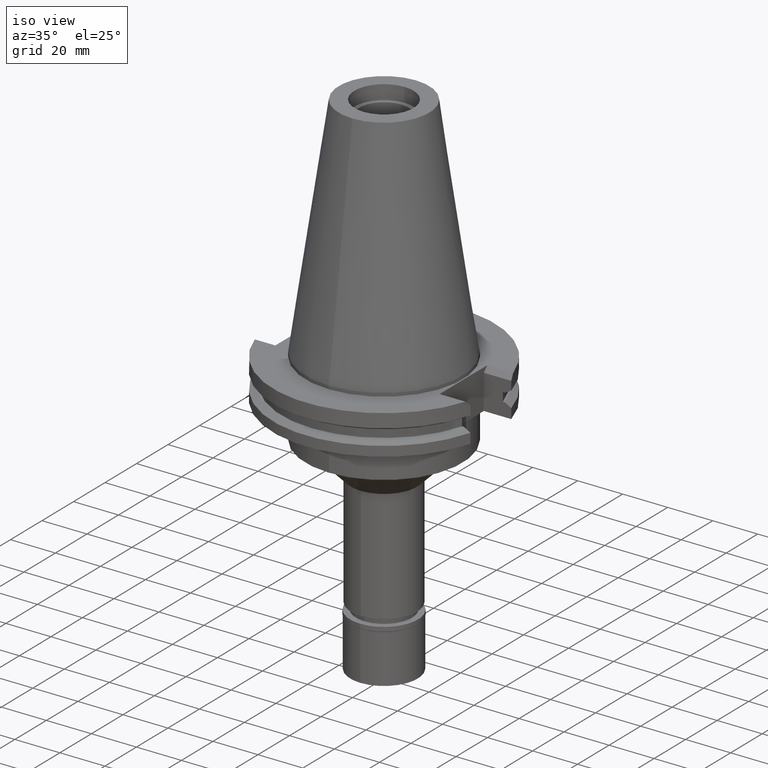
[diagram: clean part render]
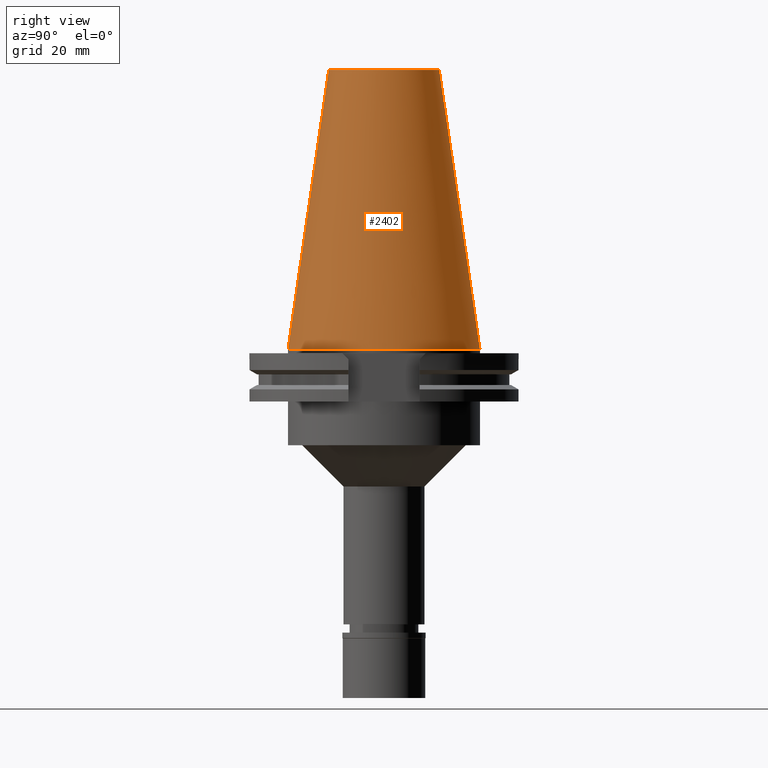
[diagram: tour spotlight — one face highlighted and labeled with its STEP entity id]
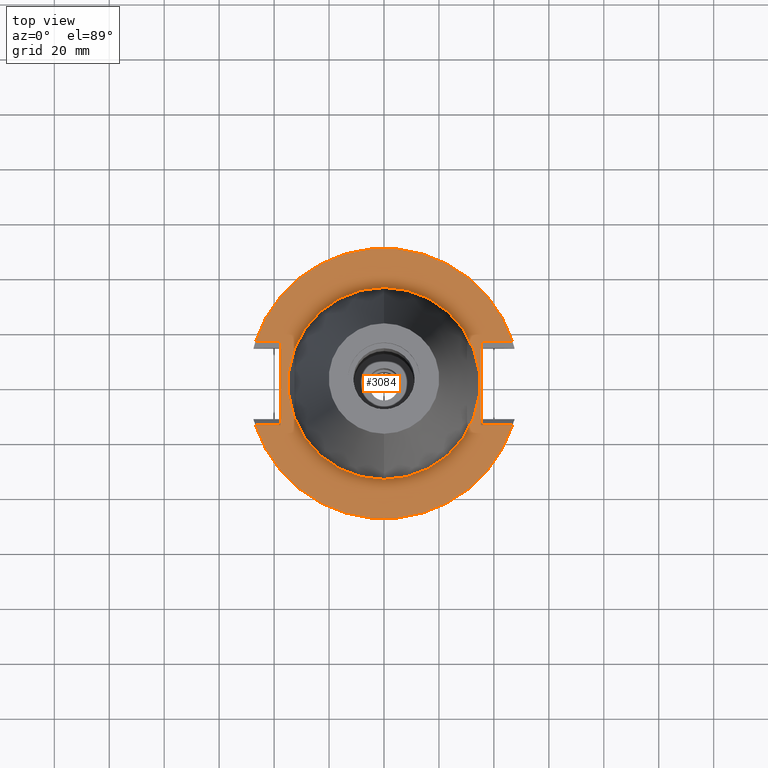
[diagram: tour spotlight — one face highlighted and labeled with its STEP entity id]
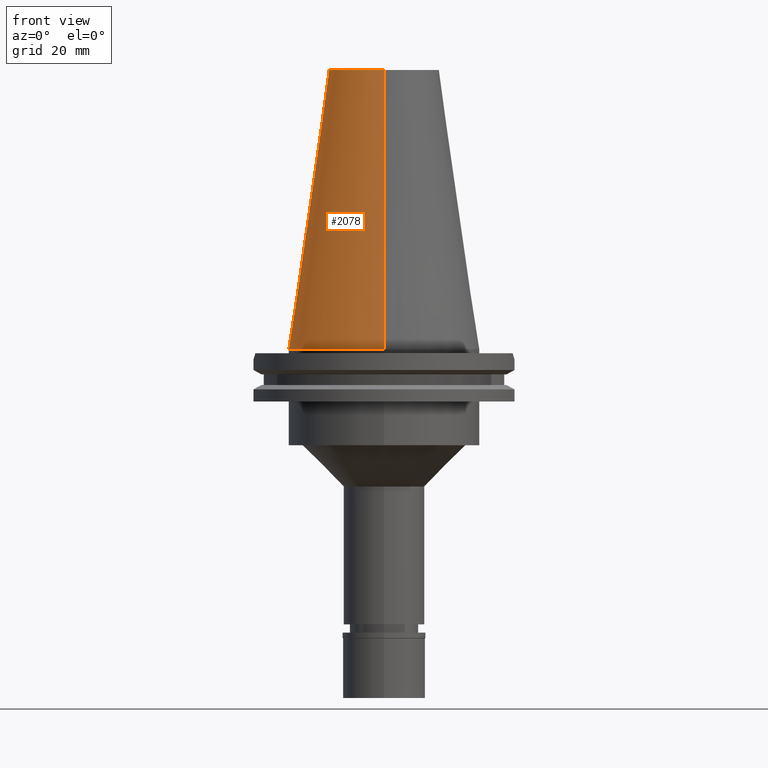
[diagram: tour spotlight — one face highlighted and labeled with its STEP entity id]
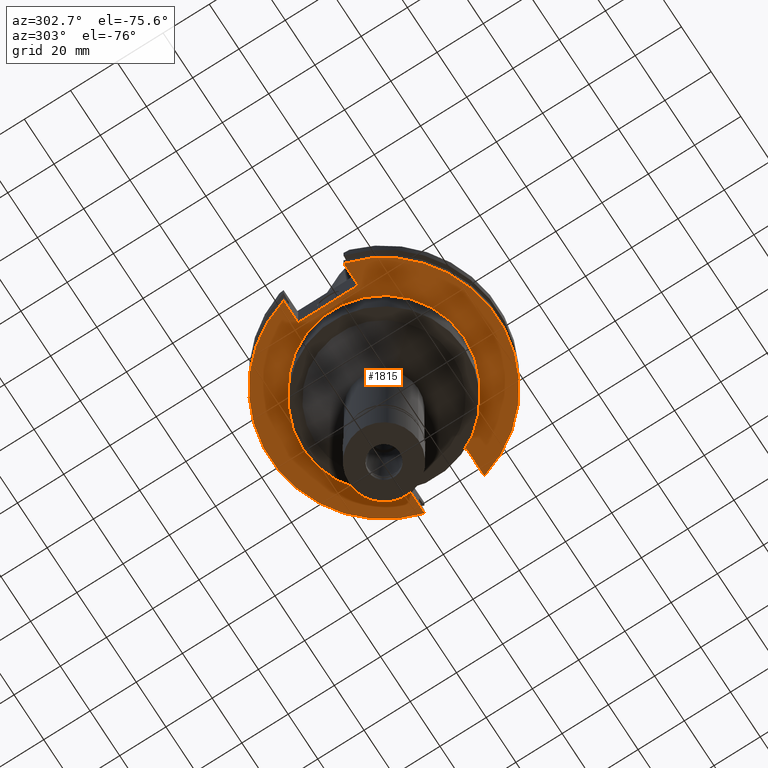
[diagram: tour spotlight — one face highlighted and labeled with its STEP entity id]
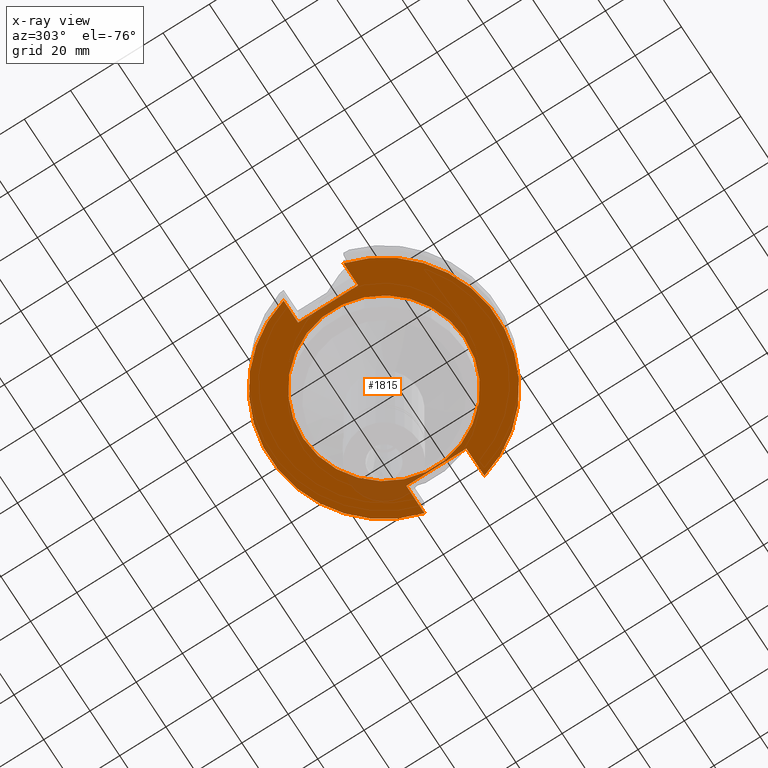
[diagram: x-ray of the same camera — body ghosted, this tour face saturated]
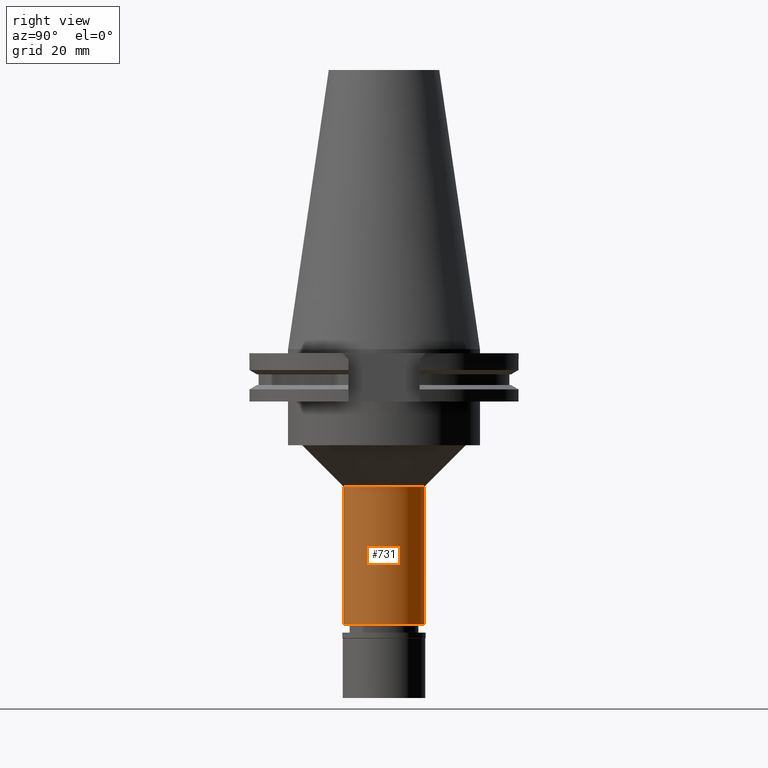
[diagram: tour spotlight — one face highlighted and labeled with its STEP entity id]
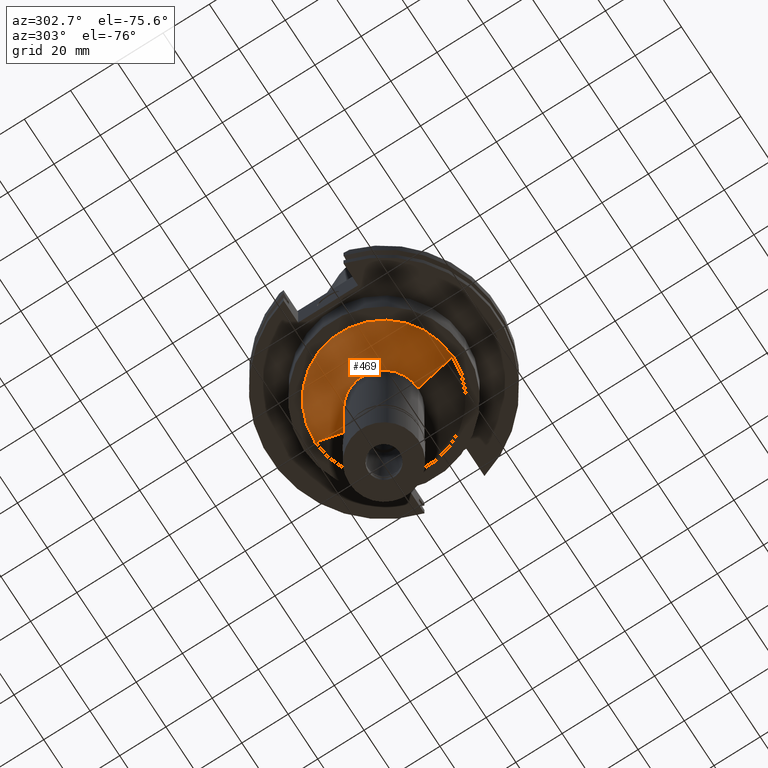
[diagram: tour spotlight — one face highlighted and labeled with its STEP entity id]
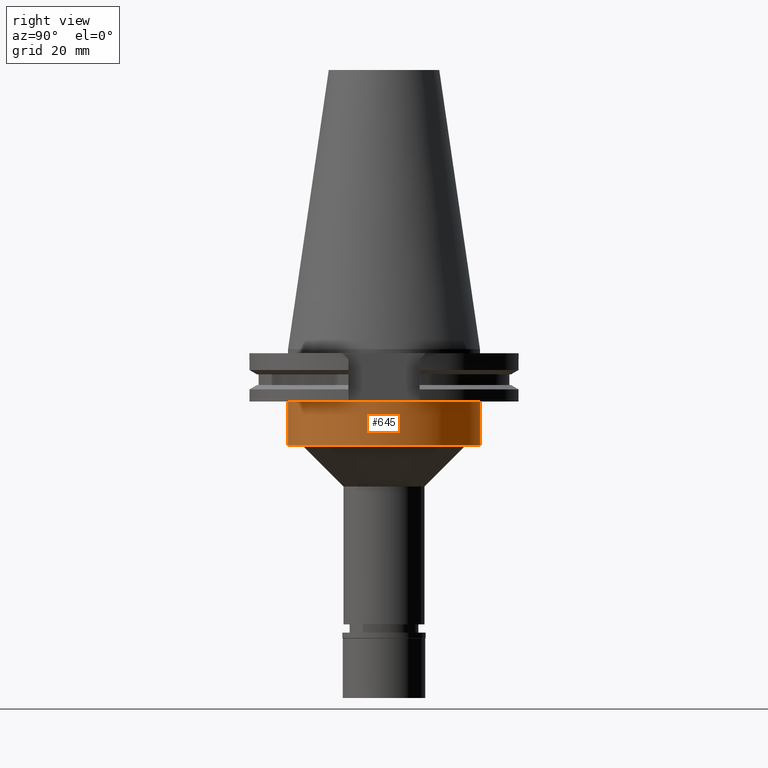
[diagram: tour spotlight — one face highlighted and labeled with its STEP entity id]
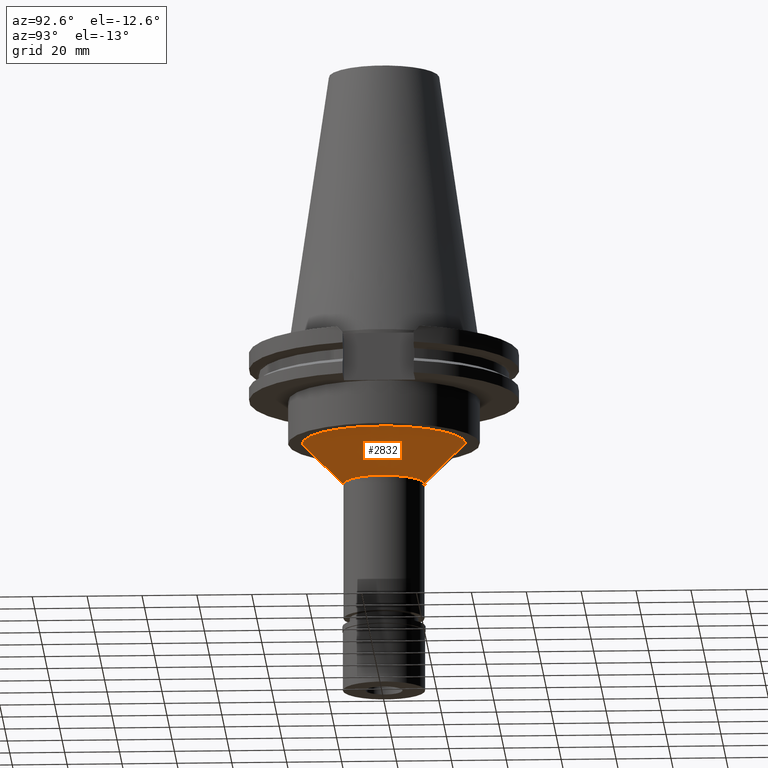
[diagram: tour spotlight — one face highlighted and labeled with its STEP entity id]
A machine part: a face-by-face anatomy tour. The part has 91 B-rep faces; the first image is the clean iso view, then the 8 largest visible faces are spotlighted one at a time (largest first), each with its STEP entity span.

Face 1 — right view, entity #2402. In plain terms, the highlighted conical surface has half-angle 8.297 deg.
Definition (entity closure, byte-faithful):
#215 = VECTOR ( 'NONE', #967, 1000.000000000000114 ) ;
#218 = AXIS2_PLACEMENT_3D ( 'NONE', #1120, #3145, #2659 ) ;
#262 = AXIS2_PLACEMENT_3D ( 'NONE', #2071, #2837, #1879 ) ;
#334 = CIRCLE ( 'NONE', #218, 20.10832422388000040 ) ;
#337 = VERTEX_POINT ( 'NONE', #1143 ) ;
#373 = EDGE_LOOP ( 'NONE', ( #709, #3133, #2662, #656 ) ) ;
#391 = CONICAL_SURFACE ( 'NONE', #1354, 27.51666211194000056, 0.1448125860318199565 ) ;
#436 = VERTEX_POINT ( 'NONE', #2778 ) ;
#474 = LINE ( 'NONE', #2471, #865 ) ;
#526 = EDGE_CURVE ( 'NONE', #337, #436, #474, .T. ) ;
#641 = VERTEX_POINT ( 'NONE', #1664 ) ;
#651 = DIRECTION ( 'NONE',  ( 0.0000000000000000000, 0.0000000000000000000, -1.000000000000000000 ) ) ;
#656 = ORIENTED_EDGE ( 'NONE', *, *, #1913, .F. ) ;
#694 = FACE_OUTER_BOUND ( 'NONE', #373, .T. ) ;
#709 = ORIENTED_EDGE ( 'NONE', *, *, #2143, .T. ) ;
#865 = VECTOR ( 'NONE', #3242, 1000.000000000000114 ) ;
#967 = DIRECTION ( 'NONE',  ( 0.0000000000000000000, 0.1443069799456937474, -0.9895329683941577192 ) ) ;
#1065 = CIRCLE ( 'NONE', #262, 34.92499999999999716 ) ;
#1097 = CARTESIAN_POINT ( 'NONE',  ( 0.0000000000000000000, 20.10832422388000040, 101.5999999999999943 ) ) ;
#1120 = CARTESIAN_POINT ( 'NONE',  ( 0.0000000000000000000, 1.846767373113999857E-14, 101.5999999999999943 ) ) ;
#1143 = CARTESIAN_POINT ( 'NONE',  ( 0.0000000000000000000, -20.10832422388000040, 101.5999999999999943 ) ) ;
#1179 = EDGE_CURVE ( 'NONE', #641, #436, #1065, .T. ) ;
#1354 = AXIS2_PLACEMENT_3D ( 'NONE', #1726, #651, #2742 ) ;
#1505 = LINE ( 'NONE', #2981, #215 ) ;
#1664 = CARTESIAN_POINT ( 'NONE',  ( 0.0000000000000000000, 34.92499999999999716, 4.902744876745000264E-13 ) ) ;
#1726 = CARTESIAN_POINT ( 'NONE',  ( 0.0000000000000000000, 1.846767373113999857E-14, 50.79999999999999716 ) ) ;
#1879 = DIRECTION ( 'NONE',  ( 0.0000000000000000000, 1.000000000000000000, 0.0000000000000000000 ) ) ;
#1913 = EDGE_CURVE ( 'NONE', #3312, #641, #1505, .T. ) ;
#2071 = CARTESIAN_POINT ( 'NONE',  ( 0.0000000000000000000, 1.846767373113999857E-14, 8.242295734816999588E-13 ) ) ;
#2143 = EDGE_CURVE ( 'NONE', #3312, #337, #334, .T. ) ;
#2402 = ADVANCED_FACE ( 'NONE', ( #694 ), #391, .T. ) ;
#2471 = CARTESIAN_POINT ( 'NONE',  ( 0.0000000000000000000, -20.10832422387000307, 101.5999999999999943 ) ) ;
#2659 = DIRECTION ( 'NONE',  ( 0.0000000000000000000, 1.000000000000000000, 0.0000000000000000000 ) ) ;
#2662 = ORIENTED_EDGE ( 'NONE', *, *, #1179, .F. ) ;
#2742 = DIRECTION ( 'NONE',  ( 0.0000000000000000000, -1.000000000000000000, 0.0000000000000000000 ) ) ;
#2778 = CARTESIAN_POINT ( 'NONE',  ( 0.0000000000000000000, -34.92499999999999716, 4.902744876745000264E-13 ) ) ;
#2837 = DIRECTION ( 'NONE',  ( 0.0000000000000000000, 0.0000000000000000000, -1.000000000000000000 ) ) ;
#2981 = CARTESIAN_POINT ( 'NONE',  ( 0.0000000000000000000, 20.10832422387000307, 101.5999999999999943 ) ) ;
#3133 = ORIENTED_EDGE ( 'NONE', *, *, #526, .T. ) ;
#3145 = DIRECTION ( 'NONE',  ( 0.0000000000000000000, 0.0000000000000000000, -1.000000000000000000 ) ) ;
#3242 = DIRECTION ( 'NONE',  ( 0.0000000000000000000, -0.1443069799456937474, -0.9895329683941577192 ) ) ;
#3312 = VERTEX_POINT ( 'NONE', #1097 ) ;

Face 2 — top view, entity #3084. In plain terms, the highlighted planar face has unit normal (0, 0, -1).
Definition (entity closure, byte-faithful):
#32 = CARTESIAN_POINT ( 'NONE',  ( 0.0000000000000000000, -34.92499999999999716, -1.500000000000000000 ) ) ;
#55 = AXIS2_PLACEMENT_3D ( 'NONE', #1154, #242, #2568 ) ;
#103 = VECTOR ( 'NONE', #409, 1000.000000000000000 ) ;
#126 = VERTEX_POINT ( 'NONE', #3250 ) ;
#134 = EDGE_CURVE ( 'NONE', #3226, #2872, #1245, .T. ) ;
#138 = VERTEX_POINT ( 'NONE', #442 ) ;
#176 = CARTESIAN_POINT ( 'NONE',  ( 35.27000000000000313, 15.15499999999999936, -1.500000000000000000 ) ) ;
#217 = CARTESIAN_POINT ( 'NONE',  ( 0.0000000000000000000, 2.602741842227999566E-14, -1.500000000000000000 ) ) ;
#220 = DIRECTION ( 'NONE',  ( 0.0000000000000000000, 0.0000000000000000000, -1.000000000000000000 ) ) ;
#242 = DIRECTION ( 'NONE',  ( 0.0000000000000000000, 0.0000000000000000000, -1.000000000000000000 ) ) ;
#255 = DIRECTION ( 'NONE',  ( 0.0000000000000000000, 1.000000000000000000, 0.0000000000000000000 ) ) ;
#273 = VECTOR ( 'NONE', #1919, 1000.000000000000000 ) ;
#366 = ORIENTED_EDGE ( 'NONE', *, *, #2988, .F. ) ;
#392 = CARTESIAN_POINT ( 'NONE',  ( -37.67999999999999972, 15.15499999999999936, -1.500000000000000000 ) ) ;
#409 = DIRECTION ( 'NONE',  ( -1.000000000000000000, -1.049386061166000038E-14, 0.0000000000000000000 ) ) ;
#431 = ORIENTED_EDGE ( 'NONE', *, *, #2549, .F. ) ;
#442 = CARTESIAN_POINT ( 'NONE',  ( 35.27000000000000313, 15.15499999999999936, -1.500000000000000000 ) ) ;
#521 = EDGE_LOOP ( 'NONE', ( #658, #366, #1609, #431, #561, #3270, #1126, #2629 ) ) ;
#536 = LINE ( 'NONE', #2007, #1472 ) ;
#561 = ORIENTED_EDGE ( 'NONE', *, *, #2385, .T. ) ;
#634 = ORIENTED_EDGE ( 'NONE', *, *, #1298, .F. ) ;
#643 = LINE ( 'NONE', #392, #103 ) ;
#647 = DIRECTION ( 'NONE',  ( 0.0000000000000000000, -1.000000000000000000, 0.0000000000000000000 ) ) ;
#649 = CIRCLE ( 'NONE', #1871, 49.21249999999999858 ) ;
#658 = ORIENTED_EDGE ( 'NONE', *, *, #2365, .T. ) ;
#666 = CARTESIAN_POINT ( 'NONE',  ( -37.67999999999999972, -15.15499999999999936, -1.500000000000000000 ) ) ;
#728 = DIRECTION ( 'NONE',  ( 0.0000000000000000000, 0.0000000000000000000, -1.000000000000000000 ) ) ;
#777 = CARTESIAN_POINT ( 'NONE',  ( 0.0000000000000000000, 1.206277097159999845E-14, -1.500000000000000000 ) ) ;
#1048 = VERTEX_POINT ( 'NONE', #3048 ) ;
#1050 = CARTESIAN_POINT ( 'NONE',  ( 46.82089417396999664, 15.15499999999999936, -1.500000000000000000 ) ) ;
#1083 = AXIS2_PLACEMENT_3D ( 'NONE', #777, #220, #2250 ) ;
#1126 = ORIENTED_EDGE ( 'NONE', *, *, #1889, .F. ) ;
#1154 = CARTESIAN_POINT ( 'NONE',  ( 0.0000000000000000000, 2.602741842227999566E-14, -1.500000000000000000 ) ) ;
#1165 = DIRECTION ( 'NONE',  ( 0.0000000000000000000, 1.000000000000000000, 0.0000000000000000000 ) ) ;
#1189 = VECTOR ( 'NONE', #1207, 1000.000000000000000 ) ;
#1207 = DIRECTION ( 'NONE',  ( 1.000000000000000000, 0.0000000000000000000, 0.0000000000000000000 ) ) ;
#1233 = FACE_BOUND ( 'NONE', #1880, .T. ) ;
#1245 = LINE ( 'NONE', #3266, #1415 ) ;
#1287 = CIRCLE ( 'NONE', #2730, 34.92499999999999716 ) ;
#1289 = CIRCLE ( 'NONE', #2621, 34.92499999999999716 ) ;
#1298 = EDGE_CURVE ( 'NONE', #2024, #2433, #1287, .T. ) ;
#1415 = VECTOR ( 'NONE', #1979, 1000.000000000000000 ) ;
#1432 = EDGE_CURVE ( 'NONE', #2480, #2020, #649, .T. ) ;
#1472 = VECTOR ( 'NONE', #2060, 1000.000000000000000 ) ;
#1504 = EDGE_CURVE ( 'NONE', #2433, #2024, #1289, .T. ) ;
#1530 = CARTESIAN_POINT ( 'NONE',  ( 0.0000000000000000000, 2.602741842227999566E-14, -1.500000000000000000 ) ) ;
#1609 = ORIENTED_EDGE ( 'NONE', *, *, #134, .F. ) ;
#1647 = LINE ( 'NONE', #1694, #2625 ) ;
#1694 = CARTESIAN_POINT ( 'NONE',  ( -37.67999999999999972, -15.15499999999999936, -1.500000000000000000 ) ) ;
#1712 = LINE ( 'NONE', #2226, #273 ) ;
#1791 = DIRECTION ( 'NONE',  ( 0.0000000000000000000, 1.000000000000000000, 0.0000000000000000000 ) ) ;
#1814 = EDGE_CURVE ( 'NONE', #2857, #1048, #1647, .T. ) ;
#1817 = CARTESIAN_POINT ( 'NONE',  ( 35.27000000000000313, -15.15499999999999936, -1.500000000000000000 ) ) ;
#1871 = AXIS2_PLACEMENT_3D ( 'NONE', #217, #728, #1791 ) ;
#1874 = ORIENTED_EDGE ( 'NONE', *, *, #1504, .F. ) ;
#1880 = EDGE_LOOP ( 'NONE', ( #1874, #634 ) ) ;
#1889 = EDGE_CURVE ( 'NONE', #1048, #2480, #643, .T. ) ;
#1919 = DIRECTION ( 'NONE',  ( -1.000000000000000000, 1.049386061166000038E-14, 0.0000000000000000000 ) ) ;
#1966 = CARTESIAN_POINT ( 'NONE',  ( 0.0000000000000000000, 2.602741842227999566E-14, -1.500000000000000000 ) ) ;
#1979 = DIRECTION ( 'NONE',  ( 1.000000000000000000, 0.0000000000000000000, 0.0000000000000000000 ) ) ;
#2001 = PLANE ( 'NONE',  #1083 ) ;
#2007 = CARTESIAN_POINT ( 'NONE',  ( 35.27000000000000313, 15.15499999999999936, -1.500000000000000000 ) ) ;
#2020 = VERTEX_POINT ( 'NONE', #1050 ) ;
#2024 = VERTEX_POINT ( 'NONE', #32 ) ;
#2060 = DIRECTION ( 'NONE',  ( 0.0000000000000000000, -1.000000000000000000, 0.0000000000000000000 ) ) ;
#2226 = CARTESIAN_POINT ( 'NONE',  ( -37.67999999999999972, -15.15499999999999936, -1.500000000000000000 ) ) ;
#2250 = DIRECTION ( 'NONE',  ( 0.0000000000000000000, -1.000000000000000000, 0.0000000000000000000 ) ) ;
#2365 = EDGE_CURVE ( 'NONE', #2857, #126, #1712, .T. ) ;
#2385 = EDGE_CURVE ( 'NONE', #138, #2020, #2724, .T. ) ;
#2433 = VERTEX_POINT ( 'NONE', #2509 ) ;
#2480 = VERTEX_POINT ( 'NONE', #2544 ) ;
#2509 = CARTESIAN_POINT ( 'NONE',  ( 0.0000000000000000000, 34.92499999999999716, -1.500000000000000000 ) ) ;
#2522 = DIRECTION ( 'NONE',  ( 0.0000000000000000000, 0.0000000000000000000, 1.000000000000000000 ) ) ;
#2544 = CARTESIAN_POINT ( 'NONE',  ( -46.82089417396999664, 15.15499999999999936, -1.500000000000000000 ) ) ;
#2549 = EDGE_CURVE ( 'NONE', #138, #3226, #536, .T. ) ;
#2568 = DIRECTION ( 'NONE',  ( 0.0000000000000000000, -1.000000000000000000, 0.0000000000000000000 ) ) ;
#2621 = AXIS2_PLACEMENT_3D ( 'NONE', #1530, #2522, #255 ) ;
#2625 = VECTOR ( 'NONE', #1165, 1000.000000000000000 ) ;
#2629 = ORIENTED_EDGE ( 'NONE', *, *, #1814, .F. ) ;
#2724 = LINE ( 'NONE', #176, #1189 ) ;
#2730 = AXIS2_PLACEMENT_3D ( 'NONE', #1966, #2934, #647 ) ;
#2857 = VERTEX_POINT ( 'NONE', #666 ) ;
#2872 = VERTEX_POINT ( 'NONE', #3197 ) ;
#2934 = DIRECTION ( 'NONE',  ( 0.0000000000000000000, 0.0000000000000000000, 1.000000000000000000 ) ) ;
#2988 = EDGE_CURVE ( 'NONE', #2872, #126, #3011, .T. ) ;
#3011 = CIRCLE ( 'NONE', #55, 49.21249999999999858 ) ;
#3048 = CARTESIAN_POINT ( 'NONE',  ( -37.67999999999999972, 15.15499999999999936, -1.500000000000000000 ) ) ;
#3075 = FACE_OUTER_BOUND ( 'NONE', #521, .T. ) ;
#3084 = ADVANCED_FACE ( 'NONE', ( #3075, #1233 ), #2001, .F. ) ;
#3197 = CARTESIAN_POINT ( 'NONE',  ( 46.82089417396999664, -15.15499999999999936, -1.500000000000000000 ) ) ;
#3226 = VERTEX_POINT ( 'NONE', #1817 ) ;
#3250 = CARTESIAN_POINT ( 'NONE',  ( -46.82089417396999664, -15.15499999999999936, -1.500000000000000000 ) ) ;
#3266 = CARTESIAN_POINT ( 'NONE',  ( 35.27000000000000313, -15.15499999999999936, -1.500000000000000000 ) ) ;
#3270 = ORIENTED_EDGE ( 'NONE', *, *, #1432, .F. ) ;

Face 3 — front view, entity #2078. In plain terms, the highlighted conical surface has half-angle 8.297 deg.
Definition (entity closure, byte-faithful):
#17 = CARTESIAN_POINT ( 'NONE',  ( 0.0000000000000000000, 1.846767373113999857E-14, 50.79999999999999716 ) ) ;
#215 = VECTOR ( 'NONE', #967, 1000.000000000000114 ) ;
#337 = VERTEX_POINT ( 'NONE', #1143 ) ;
#436 = VERTEX_POINT ( 'NONE', #2778 ) ;
#468 = FACE_OUTER_BOUND ( 'NONE', #800, .T. ) ;
#474 = LINE ( 'NONE', #2471, #865 ) ;
#499 = DIRECTION ( 'NONE',  ( 0.0000000000000000000, -1.000000000000000000, 0.0000000000000000000 ) ) ;
#526 = EDGE_CURVE ( 'NONE', #337, #436, #474, .T. ) ;
#641 = VERTEX_POINT ( 'NONE', #1664 ) ;
#690 = ORIENTED_EDGE ( 'NONE', *, *, #1913, .T. ) ;
#698 = CIRCLE ( 'NONE', #1569, 34.92499999999999716 ) ;
#800 = EDGE_LOOP ( 'NONE', ( #2399, #2132, #1019, #690 ) ) ;
#865 = VECTOR ( 'NONE', #3242, 1000.000000000000114 ) ;
#967 = DIRECTION ( 'NONE',  ( 0.0000000000000000000, 0.1443069799456937474, -0.9895329683941577192 ) ) ;
#1019 = ORIENTED_EDGE ( 'NONE', *, *, #2795, .T. ) ;
#1097 = CARTESIAN_POINT ( 'NONE',  ( 0.0000000000000000000, 20.10832422388000040, 101.5999999999999943 ) ) ;
#1141 = AXIS2_PLACEMENT_3D ( 'NONE', #17, #2015, #499 ) ;
#1143 = CARTESIAN_POINT ( 'NONE',  ( 0.0000000000000000000, -20.10832422388000040, 101.5999999999999943 ) ) ;
#1247 = AXIS2_PLACEMENT_3D ( 'NONE', #2885, #2639, #2158 ) ;
#1409 = CONICAL_SURFACE ( 'NONE', #1141, 27.51666211194000056, 0.1448125860318199565 ) ;
#1505 = LINE ( 'NONE', #2981, #215 ) ;
#1569 = AXIS2_PLACEMENT_3D ( 'NONE', #2447, #3234, #1961 ) ;
#1664 = CARTESIAN_POINT ( 'NONE',  ( 0.0000000000000000000, 34.92499999999999716, 4.902744876745000264E-13 ) ) ;
#1752 = EDGE_CURVE ( 'NONE', #436, #641, #698, .T. ) ;
#1913 = EDGE_CURVE ( 'NONE', #3312, #641, #1505, .T. ) ;
#1961 = DIRECTION ( 'NONE',  ( 0.0000000000000000000, -1.000000000000000000, 0.0000000000000000000 ) ) ;
#2015 = DIRECTION ( 'NONE',  ( 0.0000000000000000000, 0.0000000000000000000, -1.000000000000000000 ) ) ;
#2078 = ADVANCED_FACE ( 'NONE', ( #468 ), #1409, .T. ) ;
#2132 = ORIENTED_EDGE ( 'NONE', *, *, #526, .F. ) ;
#2158 = DIRECTION ( 'NONE',  ( 0.0000000000000000000, -1.000000000000000000, 0.0000000000000000000 ) ) ;
#2399 = ORIENTED_EDGE ( 'NONE', *, *, #1752, .F. ) ;
#2447 = CARTESIAN_POINT ( 'NONE',  ( 0.0000000000000000000, 1.846767373113999857E-14, 8.242295734816999588E-13 ) ) ;
#2471 = CARTESIAN_POINT ( 'NONE',  ( 0.0000000000000000000, -20.10832422387000307, 101.5999999999999943 ) ) ;
#2576 = CIRCLE ( 'NONE', #1247, 20.10832422388000040 ) ;
#2639 = DIRECTION ( 'NONE',  ( 0.0000000000000000000, 0.0000000000000000000, -1.000000000000000000 ) ) ;
#2778 = CARTESIAN_POINT ( 'NONE',  ( 0.0000000000000000000, -34.92499999999999716, 4.902744876745000264E-13 ) ) ;
#2795 = EDGE_CURVE ( 'NONE', #337, #3312, #2576, .T. ) ;
#2885 = CARTESIAN_POINT ( 'NONE',  ( 0.0000000000000000000, 1.846767373113999857E-14, 101.5999999999999943 ) ) ;
#2981 = CARTESIAN_POINT ( 'NONE',  ( 0.0000000000000000000, 20.10832422387000307, 101.5999999999999943 ) ) ;
#3234 = DIRECTION ( 'NONE',  ( 0.0000000000000000000, 0.0000000000000000000, -1.000000000000000000 ) ) ;
#3242 = DIRECTION ( 'NONE',  ( 0.0000000000000000000, -0.1443069799456937474, -0.9895329683941577192 ) ) ;
#3312 = VERTEX_POINT ( 'NONE', #1097 ) ;

Face 4 — auxiliary view, entity #1815. An x-ray twin of the same camera follows (body ghosted, this face saturated) — the face is partly hidden behind the body. In plain terms, the highlighted planar face has unit normal (0, 0, -1).
Definition (entity closure, byte-faithful):
#23 = CARTESIAN_POINT ( 'NONE',  ( -37.67999999999999972, 12.95500000000000007, -19.05000000000000071 ) ) ;
#36 = DIRECTION ( 'NONE',  ( 0.0000000000000000000, 0.0000000000000000000, 1.000000000000000000 ) ) ;
#44 = DIRECTION ( 'NONE',  ( 0.0000000000000000000, -1.000000000000000000, 0.0000000000000000000 ) ) ;
#52 = EDGE_CURVE ( 'NONE', #2323, #952, #2735, .T. ) ;
#66 = DIRECTION ( 'NONE',  ( 0.0000000000000000000, 1.000000000000000000, 0.0000000000000000000 ) ) ;
#77 = LINE ( 'NONE', #2868, #1416 ) ;
#81 = ORIENTED_EDGE ( 'NONE', *, *, #2650, .F. ) ;
#91 = ORIENTED_EDGE ( 'NONE', *, *, #928, .F. ) ;
#149 = FACE_OUTER_BOUND ( 'NONE', #1222, .T. ) ;
#209 = VECTOR ( 'NONE', #1858, 1000.000000000000000 ) ;
#332 = CARTESIAN_POINT ( 'NONE',  ( 47.47671146204000081, -12.95500000000000007, -19.05000000000000071 ) ) ;
#359 = PLANE ( 'NONE',  #1683 ) ;
#371 = EDGE_CURVE ( 'NONE', #2327, #2190, #1028, .T. ) ;
#510 = CIRCLE ( 'NONE', #2318, 34.92499999999999716 ) ;
#582 = CARTESIAN_POINT ( 'NONE',  ( 0.0000000000000000000, -34.92499999999999716, -19.05000000000000071 ) ) ;
#594 = LINE ( 'NONE', #2924, #1581 ) ;
#599 = VECTOR ( 'NONE', #1278, 1000.000000000000000 ) ;
#603 = EDGE_CURVE ( 'NONE', #952, #1078, #1305, .T. ) ;
#672 = CARTESIAN_POINT ( 'NONE',  ( -47.47671146204000081, -12.95500000000000007, -19.05000000000000071 ) ) ;
#730 = CARTESIAN_POINT ( 'NONE',  ( 0.0000000000000000000, 2.602741842227999566E-14, -19.05000000000000071 ) ) ;
#790 = CARTESIAN_POINT ( 'NONE',  ( 0.0000000000000000000, 34.92499999999999716, -19.05000000000000071 ) ) ;
#835 = LINE ( 'NONE', #2567, #209 ) ;
#855 = LINE ( 'NONE', #1079, #2514 ) ;
#881 = ORIENTED_EDGE ( 'NONE', *, *, #371, .F. ) ;
#928 = EDGE_CURVE ( 'NONE', #2681, #3251, #1484, .T. ) ;
#952 = VERTEX_POINT ( 'NONE', #2041 ) ;
#1028 = CIRCLE ( 'NONE', #1086, 49.21249999999999858 ) ;
#1058 = CARTESIAN_POINT ( 'NONE',  ( -47.47671146204000081, 12.95500000000000007, -19.05000000000000071 ) ) ;
#1078 = VERTEX_POINT ( 'NONE', #1058 ) ;
#1079 = CARTESIAN_POINT ( 'NONE',  ( 35.27000000000000313, 12.95500000000000007, -19.05000000000000071 ) ) ;
#1086 = AXIS2_PLACEMENT_3D ( 'NONE', #2594, #36, #3147 ) ;
#1137 = EDGE_CURVE ( 'NONE', #2323, #2600, #855, .T. ) ;
#1222 = EDGE_LOOP ( 'NONE', ( #1812, #1562, #2989, #1531, #1627, #881, #2863, #3323 ) ) ;
#1278 = DIRECTION ( 'NONE',  ( 1.000000000000000000, 1.455229645530999953E-14, 0.0000000000000000000 ) ) ;
#1305 = CIRCLE ( 'NONE', #1419, 49.21249999999999858 ) ;
#1365 = AXIS2_PLACEMENT_3D ( 'NONE', #1641, #2145, #3318 ) ;
#1399 = DIRECTION ( 'NONE',  ( 0.0000000000000000000, 0.0000000000000000000, -1.000000000000000000 ) ) ;
#1416 = VECTOR ( 'NONE', #1859, 1000.000000000000000 ) ;
#1419 = AXIS2_PLACEMENT_3D ( 'NONE', #730, #1953, #2973 ) ;
#1484 = CIRCLE ( 'NONE', #1365, 34.92499999999999716 ) ;
#1531 = ORIENTED_EDGE ( 'NONE', *, *, #1137, .T. ) ;
#1562 = ORIENTED_EDGE ( 'NONE', *, *, #603, .F. ) ;
#1581 = VECTOR ( 'NONE', #2346, 1000.000000000000000 ) ;
#1627 = ORIENTED_EDGE ( 'NONE', *, *, #2199, .T. ) ;
#1637 = DIRECTION ( 'NONE',  ( 1.000000000000000000, -1.411572756165000194E-14, 0.0000000000000000000 ) ) ;
#1641 = CARTESIAN_POINT ( 'NONE',  ( 0.0000000000000000000, 2.602741842227999566E-14, -19.05000000000000071 ) ) ;
#1682 = EDGE_CURVE ( 'NONE', #1703, #2327, #835, .T. ) ;
#1683 = AXIS2_PLACEMENT_3D ( 'NONE', #1704, #1399, #2919 ) ;
#1703 = VERTEX_POINT ( 'NONE', #2068 ) ;
#1704 = CARTESIAN_POINT ( 'NONE',  ( 0.0000000000000000000, 0.0000000000000000000, -19.05000000000000071 ) ) ;
#1760 = EDGE_LOOP ( 'NONE', ( #81, #91 ) ) ;
#1812 = ORIENTED_EDGE ( 'NONE', *, *, #3282, .T. ) ;
#1815 = ADVANCED_FACE ( 'NONE', ( #149, #2651 ), #359, .T. ) ;
#1858 = DIRECTION ( 'NONE',  ( -1.000000000000000000, -1.795085297572000011E-14, 0.0000000000000000000 ) ) ;
#1859 = DIRECTION ( 'NONE',  ( -1.000000000000000000, 1.813217472294999948E-14, 0.0000000000000000000 ) ) ;
#1887 = CARTESIAN_POINT ( 'NONE',  ( 35.27000000000000313, -12.95500000000000007, -19.05000000000000071 ) ) ;
#1901 = DIRECTION ( 'NONE',  ( 0.0000000000000000000, 0.0000000000000000000, -1.000000000000000000 ) ) ;
#1953 = DIRECTION ( 'NONE',  ( 0.0000000000000000000, 0.0000000000000000000, 1.000000000000000000 ) ) ;
#2041 = CARTESIAN_POINT ( 'NONE',  ( 47.47671146204000081, 12.95500000000000007, -19.05000000000000071 ) ) ;
#2068 = CARTESIAN_POINT ( 'NONE',  ( -37.67999999999999972, -12.95500000000000007, -19.05000000000000071 ) ) ;
#2097 = VECTOR ( 'NONE', #1637, 1000.000000000000000 ) ;
#2145 = DIRECTION ( 'NONE',  ( 0.0000000000000000000, 0.0000000000000000000, -1.000000000000000000 ) ) ;
#2190 = VERTEX_POINT ( 'NONE', #332 ) ;
#2199 = EDGE_CURVE ( 'NONE', #2600, #2190, #3112, .T. ) ;
#2257 = CARTESIAN_POINT ( 'NONE',  ( 35.27000000000000313, -12.95500000000000007, -19.05000000000000071 ) ) ;
#2286 = CARTESIAN_POINT ( 'NONE',  ( 35.27000000000000313, 12.95500000000000007, -19.05000000000000071 ) ) ;
#2318 = AXIS2_PLACEMENT_3D ( 'NONE', #2360, #1901, #66 ) ;
#2323 = VERTEX_POINT ( 'NONE', #2715 ) ;
#2327 = VERTEX_POINT ( 'NONE', #672 ) ;
#2346 = DIRECTION ( 'NONE',  ( 0.0000000000000000000, 1.000000000000000000, 0.0000000000000000000 ) ) ;
#2360 = CARTESIAN_POINT ( 'NONE',  ( 0.0000000000000000000, 2.602741842227999566E-14, -19.05000000000000071 ) ) ;
#2514 = VECTOR ( 'NONE', #44, 1000.000000000000000 ) ;
#2567 = CARTESIAN_POINT ( 'NONE',  ( -37.67999999999999972, -12.95500000000000007, -19.05000000000000071 ) ) ;
#2594 = CARTESIAN_POINT ( 'NONE',  ( 0.0000000000000000000, 2.602741842227999566E-14, -19.05000000000000071 ) ) ;
#2600 = VERTEX_POINT ( 'NONE', #2257 ) ;
#2650 = EDGE_CURVE ( 'NONE', #3251, #2681, #510, .T. ) ;
#2651 = FACE_BOUND ( 'NONE', #1760, .T. ) ;
#2680 = EDGE_CURVE ( 'NONE', #1703, #3180, #594, .T. ) ;
#2681 = VERTEX_POINT ( 'NONE', #582 ) ;
#2715 = CARTESIAN_POINT ( 'NONE',  ( 35.27000000000000313, 12.95500000000000007, -19.05000000000000071 ) ) ;
#2735 = LINE ( 'NONE', #2286, #599 ) ;
#2863 = ORIENTED_EDGE ( 'NONE', *, *, #1682, .F. ) ;
#2868 = CARTESIAN_POINT ( 'NONE',  ( -37.67999999999999972, 12.95500000000000007, -19.05000000000000071 ) ) ;
#2919 = DIRECTION ( 'NONE',  ( 0.0000000000000000000, -1.000000000000000000, 0.0000000000000000000 ) ) ;
#2924 = CARTESIAN_POINT ( 'NONE',  ( -37.67999999999999972, -12.95500000000000007, -19.05000000000000071 ) ) ;
#2973 = DIRECTION ( 'NONE',  ( 0.0000000000000000000, 1.000000000000000000, 0.0000000000000000000 ) ) ;
#2989 = ORIENTED_EDGE ( 'NONE', *, *, #52, .F. ) ;
#3112 = LINE ( 'NONE', #1887, #2097 ) ;
#3147 = DIRECTION ( 'NONE',  ( 0.0000000000000000000, -1.000000000000000000, 0.0000000000000000000 ) ) ;
#3180 = VERTEX_POINT ( 'NONE', #23 ) ;
#3251 = VERTEX_POINT ( 'NONE', #790 ) ;
#3282 = EDGE_CURVE ( 'NONE', #3180, #1078, #77, .T. ) ;
#3318 = DIRECTION ( 'NONE',  ( 0.0000000000000000000, -1.000000000000000000, 0.0000000000000000000 ) ) ;
#3323 = ORIENTED_EDGE ( 'NONE', *, *, #2680, .T. ) ;

Face 5 — right view, entity #731. In plain terms, the highlighted cylindrical surface (partial cylindrical patch) has radius 14.75 mm, axis along (0, 0, -1).
Definition (entity closure, byte-faithful):
#43 = CARTESIAN_POINT ( 'NONE',  ( 0.0000000000000000000, 2.602741842227999566E-14, 112.5300000000000011 ) ) ;
#63 = DIRECTION ( 'NONE',  ( 0.0000000000000000000, 0.0000000000000000000, -1.000000000000000000 ) ) ;
#155 = CARTESIAN_POINT ( 'NONE',  ( 0.0000000000000000000, 14.75000000000000000, -100.2000000000000028 ) ) ;
#295 = LINE ( 'NONE', #557, #1310 ) ;
#304 = CARTESIAN_POINT ( 'NONE',  ( 0.0000000000000000000, -14.75000000000000000, -100.2000000000000028 ) ) ;
#477 = ORIENTED_EDGE ( 'NONE', *, *, #2914, .T. ) ;
#525 = DIRECTION ( 'NONE',  ( 0.0000000000000000000, 0.0000000000000000000, 1.000000000000000000 ) ) ;
#552 = VERTEX_POINT ( 'NONE', #155 ) ;
#557 = CARTESIAN_POINT ( 'NONE',  ( 0.0000000000000000000, 14.75000000000000000, -50.00000000000000000 ) ) ;
#679 = LINE ( 'NONE', #939, #868 ) ;
#731 = ADVANCED_FACE ( 'NONE', ( #2173 ), #1332, .T. ) ;
#745 = EDGE_CURVE ( 'NONE', #3101, #847, #1091, .T. ) ;
#847 = VERTEX_POINT ( 'NONE', #1108 ) ;
#868 = VECTOR ( 'NONE', #1201, 1000.000000000000000 ) ;
#939 = CARTESIAN_POINT ( 'NONE',  ( 0.0000000000000000000, -14.75000000000000000, -50.00000000000000000 ) ) ;
#990 = EDGE_CURVE ( 'NONE', #3101, #552, #295, .T. ) ;
#1045 = DIRECTION ( 'NONE',  ( 0.0000000000000000000, -1.000000000000000000, 0.0000000000000000000 ) ) ;
#1076 = DIRECTION ( 'NONE',  ( 0.0000000000000000000, 0.0000000000000000000, -1.000000000000000000 ) ) ;
#1091 = CIRCLE ( 'NONE', #2381, 14.75000000000000000 ) ;
#1108 = CARTESIAN_POINT ( 'NONE',  ( 0.0000000000000000000, -14.75000000000000000, -50.00000000000000000 ) ) ;
#1201 = DIRECTION ( 'NONE',  ( 0.0000000000000000000, 0.0000000000000000000, -1.000000000000000000 ) ) ;
#1310 = VECTOR ( 'NONE', #1361, 1000.000000000000000 ) ;
#1332 = CYLINDRICAL_SURFACE ( 'NONE', #2585, 14.75000000000000000 ) ;
#1361 = DIRECTION ( 'NONE',  ( 0.0000000000000000000, 0.0000000000000000000, -1.000000000000000000 ) ) ;
#1364 = ORIENTED_EDGE ( 'NONE', *, *, #2488, .T. ) ;
#1425 = DIRECTION ( 'NONE',  ( 0.0000000000000000000, 1.000000000000000000, 0.0000000000000000000 ) ) ;
#1564 = CARTESIAN_POINT ( 'NONE',  ( 0.0000000000000000000, 14.75000000000000000, -50.00000000000000000 ) ) ;
#1977 = ORIENTED_EDGE ( 'NONE', *, *, #990, .F. ) ;
#2072 = CARTESIAN_POINT ( 'NONE',  ( 0.0000000000000000000, 2.602741842227999566E-14, -100.2000000000000028 ) ) ;
#2173 = FACE_OUTER_BOUND ( 'NONE', #3215, .T. ) ;
#2276 = ORIENTED_EDGE ( 'NONE', *, *, #745, .T. ) ;
#2373 = CARTESIAN_POINT ( 'NONE',  ( 0.0000000000000000000, 0.0000000000000000000, -50.00000000000000000 ) ) ;
#2381 = AXIS2_PLACEMENT_3D ( 'NONE', #2373, #63, #1425 ) ;
#2488 = EDGE_CURVE ( 'NONE', #3290, #552, #2632, .T. ) ;
#2585 = AXIS2_PLACEMENT_3D ( 'NONE', #43, #1076, #3126 ) ;
#2632 = CIRCLE ( 'NONE', #3169, 14.75000000000000000 ) ;
#2914 = EDGE_CURVE ( 'NONE', #847, #3290, #679, .T. ) ;
#3101 = VERTEX_POINT ( 'NONE', #1564 ) ;
#3126 = DIRECTION ( 'NONE',  ( 0.0000000000000000000, -1.000000000000000000, 0.0000000000000000000 ) ) ;
#3169 = AXIS2_PLACEMENT_3D ( 'NONE', #2072, #525, #1045 ) ;
#3215 = EDGE_LOOP ( 'NONE', ( #2276, #477, #1364, #1977 ) ) ;
#3290 = VERTEX_POINT ( 'NONE', #304 ) ;

Face 6 — auxiliary view, entity #469. In plain terms, the highlighted conical surface has half-angle 45 deg.
Definition (entity closure, byte-faithful):
#110 = CARTESIAN_POINT ( 'NONE',  ( 0.0000000000000000000, 0.0000000000000000000, -35.00000000000000000 ) ) ;
#165 = VERTEX_POINT ( 'NONE', #2806 ) ;
#326 = VERTEX_POINT ( 'NONE', #1857 ) ;
#339 = VECTOR ( 'NONE', #579, 1000.000000000000114 ) ;
#440 = EDGE_CURVE ( 'NONE', #165, #847, #744, .T. ) ;
#456 = CONICAL_SURFACE ( 'NONE', #2319, 22.25000000000000000, 0.7853981633972997312 ) ;
#469 = ADVANCED_FACE ( 'NONE', ( #1513 ), #456, .T. ) ;
#579 = DIRECTION ( 'NONE',  ( 0.0000000000000000000, -0.7071067811865474617, -0.7071067811865474617 ) ) ;
#606 = VECTOR ( 'NONE', #3292, 1000.000000000000114 ) ;
#631 = ORIENTED_EDGE ( 'NONE', *, *, #3199, .T. ) ;
#635 = CARTESIAN_POINT ( 'NONE',  ( 0.0000000000000000000, 0.0000000000000000000, -50.00000000000000000 ) ) ;
#642 = EDGE_CURVE ( 'NONE', #847, #3101, #1793, .T. ) ;
#680 = DIRECTION ( 'NONE',  ( 0.0000000000000000000, 0.0000000000000000000, 1.000000000000000000 ) ) ;
#744 = LINE ( 'NONE', #3224, #606 ) ;
#847 = VERTEX_POINT ( 'NONE', #1108 ) ;
#875 = DIRECTION ( 'NONE',  ( 0.0000000000000000000, 0.0000000000000000000, -1.000000000000000000 ) ) ;
#1055 = LINE ( 'NONE', #1626, #339 ) ;
#1088 = AXIS2_PLACEMENT_3D ( 'NONE', #635, #875, #1899 ) ;
#1108 = CARTESIAN_POINT ( 'NONE',  ( 0.0000000000000000000, -14.75000000000000000, -50.00000000000000000 ) ) ;
#1461 = CIRCLE ( 'NONE', #3314, 29.75000000000000000 ) ;
#1513 = FACE_OUTER_BOUND ( 'NONE', #2636, .T. ) ;
#1564 = CARTESIAN_POINT ( 'NONE',  ( 0.0000000000000000000, 14.75000000000000000, -50.00000000000000000 ) ) ;
#1626 = CARTESIAN_POINT ( 'NONE',  ( 0.0000000000000000000, 29.75000000000000000, -35.00000000000000000 ) ) ;
#1714 = EDGE_CURVE ( 'NONE', #165, #326, #1461, .T. ) ;
#1793 = CIRCLE ( 'NONE', #1088, 14.75000000000000000 ) ;
#1857 = CARTESIAN_POINT ( 'NONE',  ( 0.0000000000000000000, 29.75000000000000000, -35.00000000000000000 ) ) ;
#1899 = DIRECTION ( 'NONE',  ( 0.0000000000000000000, -1.000000000000000000, 0.0000000000000000000 ) ) ;
#1969 = CARTESIAN_POINT ( 'NONE',  ( 0.0000000000000000000, 0.0000000000000000000, -42.50000000000000000 ) ) ;
#2151 = DIRECTION ( 'NONE',  ( 0.0000000000000000000, 0.0000000000000000000, -1.000000000000000000 ) ) ;
#2288 = ORIENTED_EDGE ( 'NONE', *, *, #440, .F. ) ;
#2319 = AXIS2_PLACEMENT_3D ( 'NONE', #1969, #680, #2524 ) ;
#2508 = ORIENTED_EDGE ( 'NONE', *, *, #1714, .T. ) ;
#2524 = DIRECTION ( 'NONE',  ( 0.0000000000000000000, 1.000000000000000000, 0.0000000000000000000 ) ) ;
#2636 = EDGE_LOOP ( 'NONE', ( #3193, #2288, #2508, #631 ) ) ;
#2806 = CARTESIAN_POINT ( 'NONE',  ( 0.0000000000000000000, -29.75000000000000000, -35.00000000000000000 ) ) ;
#2967 = DIRECTION ( 'NONE',  ( 0.0000000000000000000, -1.000000000000000000, 0.0000000000000000000 ) ) ;
#3101 = VERTEX_POINT ( 'NONE', #1564 ) ;
#3193 = ORIENTED_EDGE ( 'NONE', *, *, #642, .F. ) ;
#3199 = EDGE_CURVE ( 'NONE', #326, #3101, #1055, .T. ) ;
#3224 = CARTESIAN_POINT ( 'NONE',  ( 0.0000000000000000000, -29.75000000000000000, -35.00000000000000000 ) ) ;
#3292 = DIRECTION ( 'NONE',  ( 0.0000000000000000000, 0.7071067811865474617, -0.7071067811865474617 ) ) ;
#3314 = AXIS2_PLACEMENT_3D ( 'NONE', #110, #2151, #2967 ) ;

Face 7 — right view, entity #645. In plain terms, the highlighted cylindrical surface (partial cylindrical patch) has radius 34.925 mm, axis along (0, 0, -1).
Definition (entity closure, byte-faithful):
#2 = CIRCLE ( 'NONE', #3284, 34.92499999999999716 ) ;
#66 = DIRECTION ( 'NONE',  ( 0.0000000000000000000, 1.000000000000000000, 0.0000000000000000000 ) ) ;
#117 = DIRECTION ( 'NONE',  ( 0.0000000000000000000, -1.000000000000000000, 0.0000000000000000000 ) ) ;
#137 = CARTESIAN_POINT ( 'NONE',  ( 0.0000000000000000000, 34.92499999999999716, -35.00000000000000000 ) ) ;
#168 = VERTEX_POINT ( 'NONE', #1736 ) ;
#202 = EDGE_CURVE ( 'NONE', #3251, #1307, #1946, .T. ) ;
#507 = CARTESIAN_POINT ( 'NONE',  ( 0.0000000000000000000, -34.92499999999999716, -19.05000000000000071 ) ) ;
#510 = CIRCLE ( 'NONE', #2318, 34.92499999999999716 ) ;
#582 = CARTESIAN_POINT ( 'NONE',  ( 0.0000000000000000000, -34.92499999999999716, -19.05000000000000071 ) ) ;
#645 = ADVANCED_FACE ( 'NONE', ( #2139 ), #2882, .T. ) ;
#726 = EDGE_CURVE ( 'NONE', #168, #1307, #2, .T. ) ;
#787 = ORIENTED_EDGE ( 'NONE', *, *, #202, .F. ) ;
#790 = CARTESIAN_POINT ( 'NONE',  ( 0.0000000000000000000, 34.92499999999999716, -19.05000000000000071 ) ) ;
#821 = ORIENTED_EDGE ( 'NONE', *, *, #2650, .T. ) ;
#828 = DIRECTION ( 'NONE',  ( 0.0000000000000000000, -1.000000000000000000, 0.0000000000000000000 ) ) ;
#1307 = VERTEX_POINT ( 'NONE', #137 ) ;
#1512 = DIRECTION ( 'NONE',  ( 0.0000000000000000000, 0.0000000000000000000, -1.000000000000000000 ) ) ;
#1611 = DIRECTION ( 'NONE',  ( 0.0000000000000000000, 0.0000000000000000000, -1.000000000000000000 ) ) ;
#1736 = CARTESIAN_POINT ( 'NONE',  ( 0.0000000000000000000, -34.92499999999999716, -35.00000000000000000 ) ) ;
#1862 = CARTESIAN_POINT ( 'NONE',  ( 0.0000000000000000000, 2.602741842227999566E-14, 112.5300000000000011 ) ) ;
#1901 = DIRECTION ( 'NONE',  ( 0.0000000000000000000, 0.0000000000000000000, -1.000000000000000000 ) ) ;
#1937 = VECTOR ( 'NONE', #1512, 1000.000000000000000 ) ;
#1942 = AXIS2_PLACEMENT_3D ( 'NONE', #1862, #1611, #828 ) ;
#1946 = LINE ( 'NONE', #1963, #2954 ) ;
#1963 = CARTESIAN_POINT ( 'NONE',  ( 0.0000000000000000000, 34.92499999999999716, -19.05000000000000071 ) ) ;
#2139 = FACE_OUTER_BOUND ( 'NONE', #2721, .T. ) ;
#2154 = CARTESIAN_POINT ( 'NONE',  ( 0.0000000000000000000, 2.602741842227999566E-14, -35.00000000000000000 ) ) ;
#2220 = ORIENTED_EDGE ( 'NONE', *, *, #3092, .T. ) ;
#2318 = AXIS2_PLACEMENT_3D ( 'NONE', #2360, #1901, #66 ) ;
#2360 = CARTESIAN_POINT ( 'NONE',  ( 0.0000000000000000000, 2.602741842227999566E-14, -19.05000000000000071 ) ) ;
#2417 = DIRECTION ( 'NONE',  ( 0.0000000000000000000, 0.0000000000000000000, 1.000000000000000000 ) ) ;
#2634 = ORIENTED_EDGE ( 'NONE', *, *, #726, .T. ) ;
#2650 = EDGE_CURVE ( 'NONE', #3251, #2681, #510, .T. ) ;
#2681 = VERTEX_POINT ( 'NONE', #582 ) ;
#2721 = EDGE_LOOP ( 'NONE', ( #821, #2220, #2634, #787 ) ) ;
#2824 = LINE ( 'NONE', #507, #1937 ) ;
#2882 = CYLINDRICAL_SURFACE ( 'NONE', #1942, 34.92499999999999716 ) ;
#2954 = VECTOR ( 'NONE', #3267, 1000.000000000000000 ) ;
#3092 = EDGE_CURVE ( 'NONE', #2681, #168, #2824, .T. ) ;
#3251 = VERTEX_POINT ( 'NONE', #790 ) ;
#3267 = DIRECTION ( 'NONE',  ( 0.0000000000000000000, 0.0000000000000000000, -1.000000000000000000 ) ) ;
#3284 = AXIS2_PLACEMENT_3D ( 'NONE', #2154, #2417, #117 ) ;

Face 8 — auxiliary view, entity #2832. In plain terms, the highlighted conical surface has half-angle 45 deg.
Definition (entity closure, byte-faithful):
#63 = DIRECTION ( 'NONE',  ( 0.0000000000000000000, 0.0000000000000000000, -1.000000000000000000 ) ) ;
#165 = VERTEX_POINT ( 'NONE', #2806 ) ;
#326 = VERTEX_POINT ( 'NONE', #1857 ) ;
#339 = VECTOR ( 'NONE', #579, 1000.000000000000114 ) ;
#440 = EDGE_CURVE ( 'NONE', #165, #847, #744, .T. ) ;
#496 = ORIENTED_EDGE ( 'NONE', *, *, #3199, .F. ) ;
#579 = DIRECTION ( 'NONE',  ( 0.0000000000000000000, -0.7071067811865474617, -0.7071067811865474617 ) ) ;
#606 = VECTOR ( 'NONE', #3292, 1000.000000000000114 ) ;
#661 = CONICAL_SURFACE ( 'NONE', #2372, 22.25000000000000000, 0.7853981633972997312 ) ;
#744 = LINE ( 'NONE', #3224, #606 ) ;
#745 = EDGE_CURVE ( 'NONE', #3101, #847, #1091, .T. ) ;
#847 = VERTEX_POINT ( 'NONE', #1108 ) ;
#902 = EDGE_LOOP ( 'NONE', ( #1422, #3071, #1673, #496 ) ) ;
#1055 = LINE ( 'NONE', #1626, #339 ) ;
#1091 = CIRCLE ( 'NONE', #2381, 14.75000000000000000 ) ;
#1108 = CARTESIAN_POINT ( 'NONE',  ( 0.0000000000000000000, -14.75000000000000000, -50.00000000000000000 ) ) ;
#1172 = DIRECTION ( 'NONE',  ( 0.0000000000000000000, 1.000000000000000000, 0.0000000000000000000 ) ) ;
#1368 = DIRECTION ( 'NONE',  ( 0.0000000000000000000, 0.0000000000000000000, -1.000000000000000000 ) ) ;
#1422 = ORIENTED_EDGE ( 'NONE', *, *, #1644, .T. ) ;
#1425 = DIRECTION ( 'NONE',  ( 0.0000000000000000000, 1.000000000000000000, 0.0000000000000000000 ) ) ;
#1430 = FACE_OUTER_BOUND ( 'NONE', #902, .T. ) ;
#1564 = CARTESIAN_POINT ( 'NONE',  ( 0.0000000000000000000, 14.75000000000000000, -50.00000000000000000 ) ) ;
#1626 = CARTESIAN_POINT ( 'NONE',  ( 0.0000000000000000000, 29.75000000000000000, -35.00000000000000000 ) ) ;
#1644 = EDGE_CURVE ( 'NONE', #326, #165, #3054, .T. ) ;
#1673 = ORIENTED_EDGE ( 'NONE', *, *, #745, .F. ) ;
#1857 = CARTESIAN_POINT ( 'NONE',  ( 0.0000000000000000000, 29.75000000000000000, -35.00000000000000000 ) ) ;
#2355 = DIRECTION ( 'NONE',  ( 0.0000000000000000000, 1.000000000000000000, 0.0000000000000000000 ) ) ;
#2372 = AXIS2_PLACEMENT_3D ( 'NONE', #2722, #2689, #1172 ) ;
#2373 = CARTESIAN_POINT ( 'NONE',  ( 0.0000000000000000000, 0.0000000000000000000, -50.00000000000000000 ) ) ;
#2381 = AXIS2_PLACEMENT_3D ( 'NONE', #2373, #63, #1425 ) ;
#2689 = DIRECTION ( 'NONE',  ( 0.0000000000000000000, 0.0000000000000000000, 1.000000000000000000 ) ) ;
#2722 = CARTESIAN_POINT ( 'NONE',  ( 0.0000000000000000000, 0.0000000000000000000, -42.50000000000000000 ) ) ;
#2806 = CARTESIAN_POINT ( 'NONE',  ( 0.0000000000000000000, -29.75000000000000000, -35.00000000000000000 ) ) ;
#2832 = ADVANCED_FACE ( 'NONE', ( #1430 ), #661, .T. ) ;
#2940 = AXIS2_PLACEMENT_3D ( 'NONE', #3150, #1368, #2355 ) ;
#3054 = CIRCLE ( 'NONE', #2940, 29.75000000000000000 ) ;
#3071 = ORIENTED_EDGE ( 'NONE', *, *, #440, .T. ) ;
#3101 = VERTEX_POINT ( 'NONE', #1564 ) ;
#3150 = CARTESIAN_POINT ( 'NONE',  ( 0.0000000000000000000, 0.0000000000000000000, -35.00000000000000000 ) ) ;
#3199 = EDGE_CURVE ( 'NONE', #326, #3101, #1055, .T. ) ;
#3224 = CARTESIAN_POINT ( 'NONE',  ( 0.0000000000000000000, -29.75000000000000000, -35.00000000000000000 ) ) ;
#3292 = DIRECTION ( 'NONE',  ( 0.0000000000000000000, 0.7071067811865474617, -0.7071067811865474617 ) ) ;